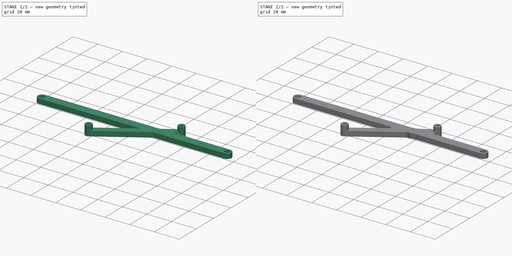
[diagram: build sequence overview — one tinted view per stage of 2, left to right]
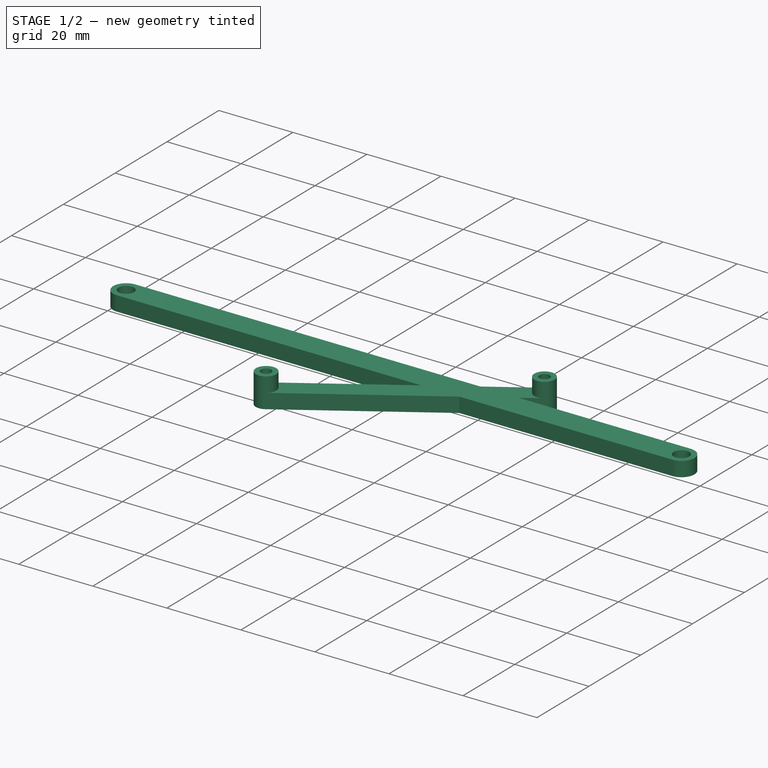
[diagram: stage 1 of 2 — iso view after this stage's code; geometry added in this stage tinted green]
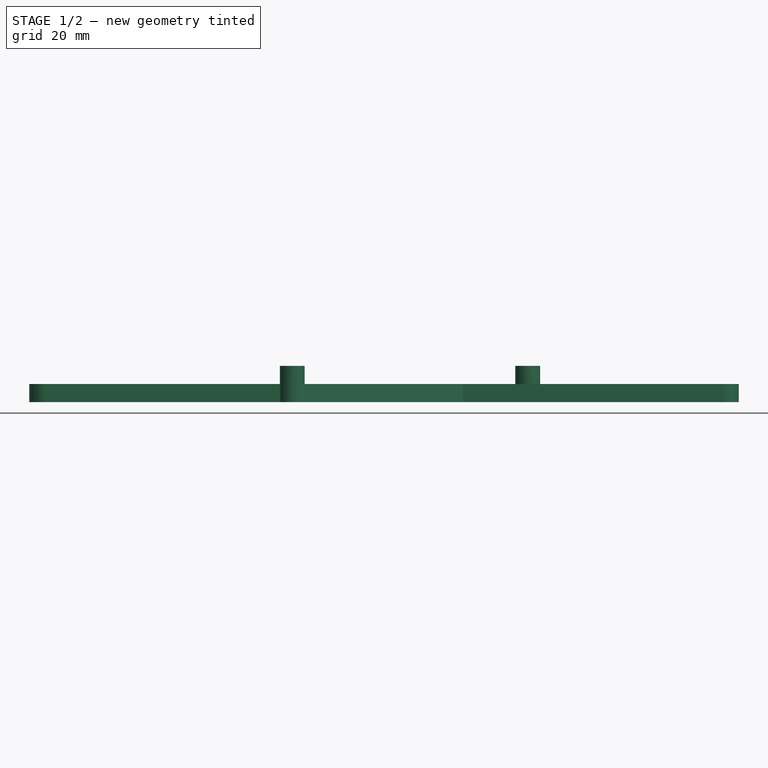
[diagram: stage 1 of 2 — front view after this stage's code; geometry added in this stage tinted green]
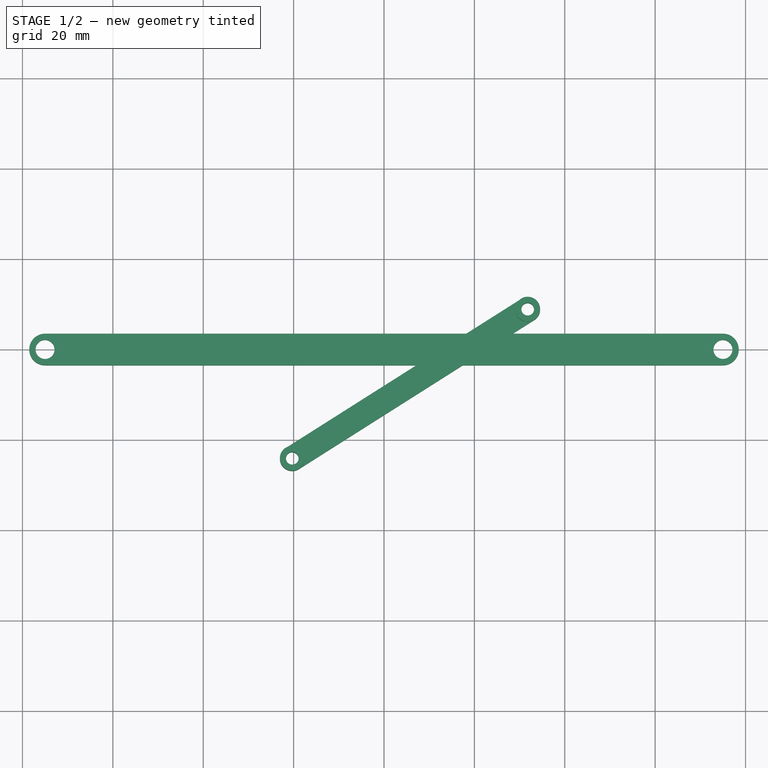
[diagram: stage 1 of 2 — top view after this stage's code; geometry added in this stage tinted green]
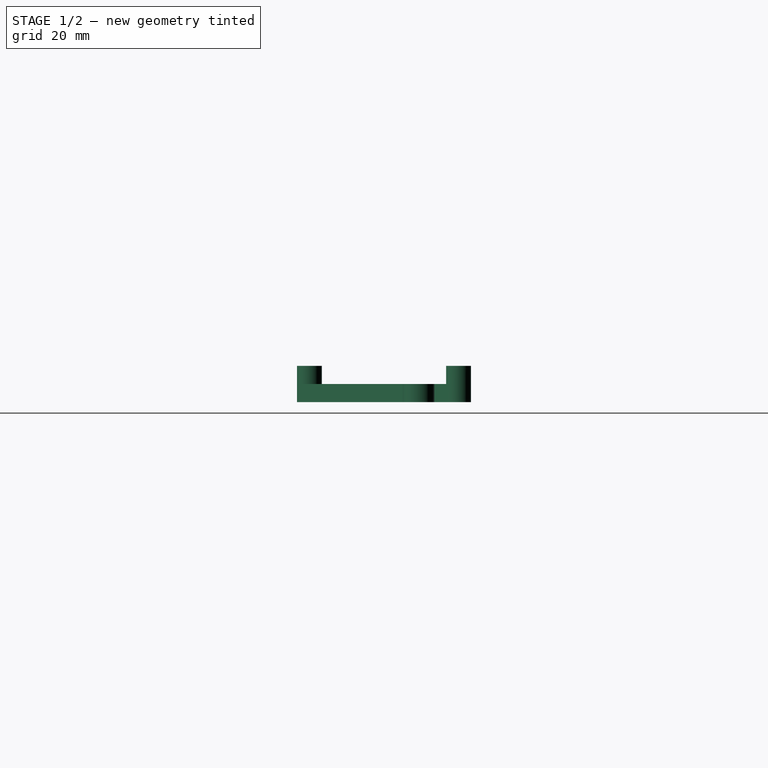
[diagram: stage 1 of 2 — right view after this stage's code; geometry added in this stage tinted green]
FCSTD DOCUMENT  (FreeCAD 0.19R24267 +99 (Git))
Label: arduino_to_psu_mount
License: All rights reserved
LicenseURL: http://en.wikipedia.org/wiki/All_rights_reserved
objects: Sketcher::SketchObject×2, PartDesign::Pad×2, PartDesign::Fillet×2, PartDesign::Body×1
note: 11 computed .brp shape members not serialized (recipe doc carries the construction recipe); baked Part::Feature solids carry a one-line shape summary decoded from their .brp

FEATURE [Sketcher::SketchObject] Sketch
  FullyConstrained = true
  MapMode = 5
  Support = -> [XY_Plane]
  sketch-geometry (24):
    g0: ArcOfCircle CenterX=75 CenterY=0 CenterZ=0 NormalX=0 NormalY=0 NormalZ=1 AngleXU=0 Radius=3.5 StartAngle=4.71239 EndAngle=7.85398
    g1: ArcOfCircle CenterX=-75 CenterY=0 CenterZ=0 NormalX=0 NormalY=0 NormalZ=1 AngleXU=0 Radius=3.5 StartAngle=1.5708 EndAngle=4.71239
    g2: LineSegment StartX=-75 StartY=-3.5 StartZ=0 EndX=7.16265 EndY=-3.5 EndZ=0
    g3: LineSegment StartX=75 StartY=3.5 StartZ=0 EndX=28.4928 EndY=3.5 EndZ=0
    g4: LineSegment StartX=-34.3 StartY=-26.65 StartZ=0 EndX=34.3 EndY=-26.65 EndZ=0
    g5: LineSegment StartX=34.3 StartY=-26.65 StartZ=0 EndX=34.3 EndY=26.65 EndZ=0
    g6: LineSegment StartX=34.3 StartY=26.65 StartZ=0 EndX=-34.3 EndY=26.65 EndZ=0
    g7: LineSegment StartX=-34.3 StartY=26.65 StartZ=0 EndX=-34.3 EndY=-26.65 EndZ=0
    g8: ArcOfCircle CenterX=31.8 CenterY=8.85 CenterZ=0 NormalX=0 NormalY=0 NormalZ=1 AngleXU=0 Radius=2.75 StartAngle=5.277 EndAngle=8.4186
    g9: LineSegment StartX=-21.7715 StartY=-21.8268 StartZ=0 EndX=30.3285 EndY=11.1732 EndZ=0
    g10: LineSegment StartX=30.3285 StartY=11.1732 StartZ=0 EndX=33.2715 EndY=6.52681 EndZ=0
    g11: LineSegment StartX=33.2715 StartY=6.52681 StartZ=0 EndX=-18.8285 EndY=-26.4732 EndZ=0
    g12: LineSegment StartX=-18.8285 StartY=-26.4732 StartZ=0 EndX=-21.7715 EndY=-21.8268 EndZ=0
    g13: LineSegment StartX=30.3285 StartY=11.1732 StartZ=0 EndX=18.2142 EndY=3.5 EndZ=0
    g14: LineSegment StartX=-18.8285 StartY=-26.4732 StartZ=0 EndX=17.4413 EndY=-3.5 EndZ=0
    g15: LineSegment StartX=7.16265 StartY=-3.5 StartZ=0 EndX=-21.7715 EndY=-21.8268 EndZ=0
    g16: LineSegment StartX=17.4413 StartY=-3.5 StartZ=0 EndX=75 EndY=-3.5 EndZ=0
    g17: LineSegment StartX=28.4928 StartY=3.5 StartZ=0 EndX=33.2715 EndY=6.52681 EndZ=0
    g18: LineSegment StartX=18.2142 StartY=3.5 StartZ=0 EndX=-75 EndY=3.5 EndZ=0
    g19: ArcOfCircle CenterX=-20.3 CenterY=-24.15 CenterZ=0 NormalX=0 NormalY=0 NormalZ=1 AngleXU=0 Radius=2.75 StartAngle=2.13541 EndAngle=5.277
    g20: Circle CenterX=-75 CenterY=0 CenterZ=0 NormalX=0 NormalY=0 NormalZ=1 AngleXU=0 Radius=2.1
    g21: Circle CenterX=75 CenterY=0 CenterZ=0 NormalX=0 NormalY=0 NormalZ=1 AngleXU=0 Radius=2.1
    g22: Circle CenterX=-20.3 CenterY=-24.15 CenterZ=0 NormalX=0 NormalY=0 NormalZ=1 AngleXU=0 Radius=1.4
    g23: Circle CenterX=31.8 CenterY=8.85 CenterZ=0 NormalX=0 NormalY=0 NormalZ=1 AngleXU=0 Radius=1.4
  constraints (67):
    c: Equal(g0,g1)
    c: Horizontal(g-1,g0)
    c: Symmetric(g2,g3,g-1)
    c: Coincident(g1,g18)
    c: Coincident(g1,g2)
    c: Coincident(g0,g16)
    c: Vertical(g1,g1)
    c: Diameter(g1) = 7
    c: DistanceX(g1,g0) = 150
    c: Vertical(g1,g1)
    c: Vertical(g0,g0)
    c: Vertical(g0,g0)
    c: Coincident(g4,g5)
    c: Coincident(g5,g6)
    c: Coincident(g6,g7)
    c: Coincident(g7,g4)
    c: Horizontal(g4)
    c: Horizontal(g6)
    c: Vertical(g5)
    c: Vertical(g7)
    c: DistanceX(g6,g6) = 68.6
    c: DistanceY(g7,g7) = 53.3
    c: Symmetric(g4,g5,g-1)
    c: DistanceX(g4,g8) = 66.1
    c: DistanceY(g4,g8) = 35.5
    c: Coincident(g9,g10)
    c: Coincident(g10,g11)
    c: Coincident(g11,g12)
    c: Coincident(g12,g9)
    c: Equal(g9,g11)
    c: Perpendicular(g9,g12)
    c: Symmetric(g9,g10,g8)
    c: Coincident(g13,g9)
    c: Coincident(g15,g9)
    c: Coincident(g14,g11)
    c: Coincident(g17,g10)
    c: Coincident(g8,g9)
    c: PointOnObject(g8,g10)
    c: PointOnObject(g13,g3)
    c: PointOnObject(g15,g2)
    c: Tangent(g13,g15)
    c: PointOnObject(g2,g9)
    c: PointOnObject(g16,g11)
    c: Tangent(g2,g16)
    c: PointOnObject(g14,g16)
    c: PointOnObject(g17,g3)
    c: Tangent(g14,g17)
    c: PointOnObject(g3,g11)
    c: PointOnObject(g18,g9)
    c: Tangent(g3,g18)
    c: Symmetric(g1,g0,g-1)
    c: Diameter(g19) = 5.5
    c: Tangent(g15,g19) = -1.5708
    c: Tangent(g14,g19) = -1.5708
    c: Coincident(g19,g9)
    c: Coincident(g19,g11)
    c: DistanceX(g4,g19) = 14
    c: DistanceY(g4,g19) = 2.5
    c: Equal(g8,g19)
    c: Coincident(g20,g1)
    c: Diameter(g20) = 4.2
    c: Coincident(g21,g0)
    c: Coincident(g22,g19)
    c: Diameter(g22) = 2.8
    c: Equal(g20,g21)
    c: Coincident(g23,g8)
    c: Equal(g22,g23)
FEATURE [PartDesign::Pad] Pad
  Direction = (1,1,1)
  Length = 4
  Length2 = 100
  Profile = -> Sketch
  Type = 0
FEATURE [Sketcher::SketchObject] Sketch001
  ExternalGeometry = -> [Pad]
  FullyConstrained = true
  MapMode = 5
  Placement = pos=(0,0,4) rot=(0,0,1;0rad)
  Support = -> [Pad]
  sketch-geometry (4):
    g0: Circle CenterX=31.8 CenterY=8.85 CenterZ=0 NormalX=0 NormalY=0 NormalZ=1 AngleXU=0 Radius=1.4
    g1: Circle CenterX=31.8 CenterY=8.85 CenterZ=0 NormalX=0 NormalY=0 NormalZ=1 AngleXU=0 Radius=2.75
    g2: Circle CenterX=-20.3 CenterY=-24.15 CenterZ=0 NormalX=0 NormalY=0 NormalZ=1 AngleXU=0 Radius=1.4
    g3: Circle CenterX=-20.3 CenterY=-24.15 CenterZ=0 NormalX=0 NormalY=0 NormalZ=1 AngleXU=0 Radius=2.75
  constraints (8):
    c: Coincident(g0,g-6)
    c: Equal(g0,g-5)
    c: Coincident(g1,g0)
    c: Equal(g1,g-6)
    c: Coincident(g2,g-4)
    c: Coincident(g3,g2)
    c: Equal(g2,g0)
    c: Equal(g3,g1)
FEATURE [PartDesign::Pad] Pad001
  BaseFeature = -> Pad
  Direction = (1,1,1)
  Length = 4
  Length2 = 100
  Profile = -> Sketch001
  Type = 0
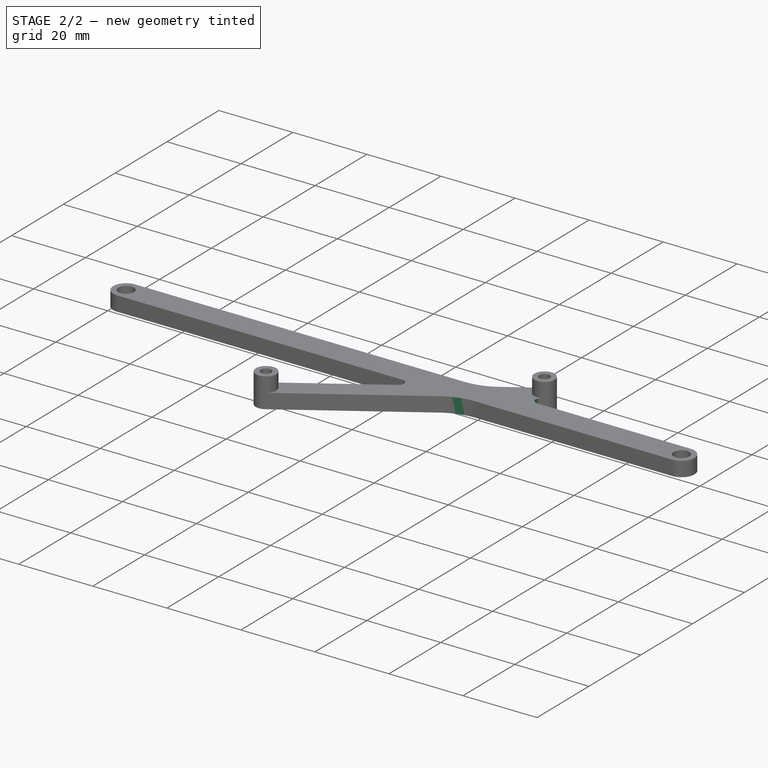
[diagram: stage 2 of 2 — iso view after this stage's code; geometry added in this stage tinted green]
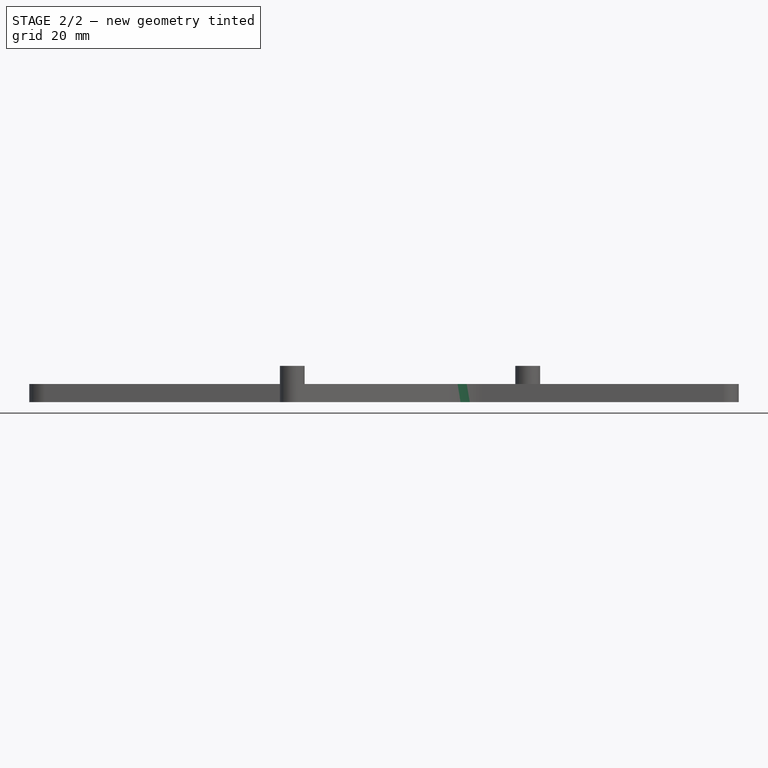
[diagram: stage 2 of 2 — front view after this stage's code; geometry added in this stage tinted green]
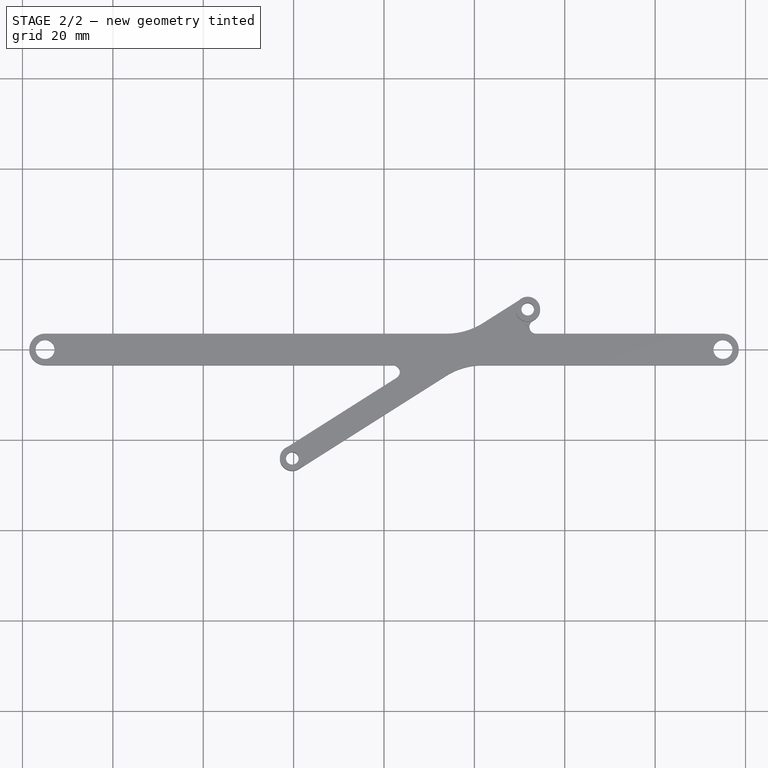
[diagram: stage 2 of 2 — top view after this stage's code; geometry added in this stage tinted green]
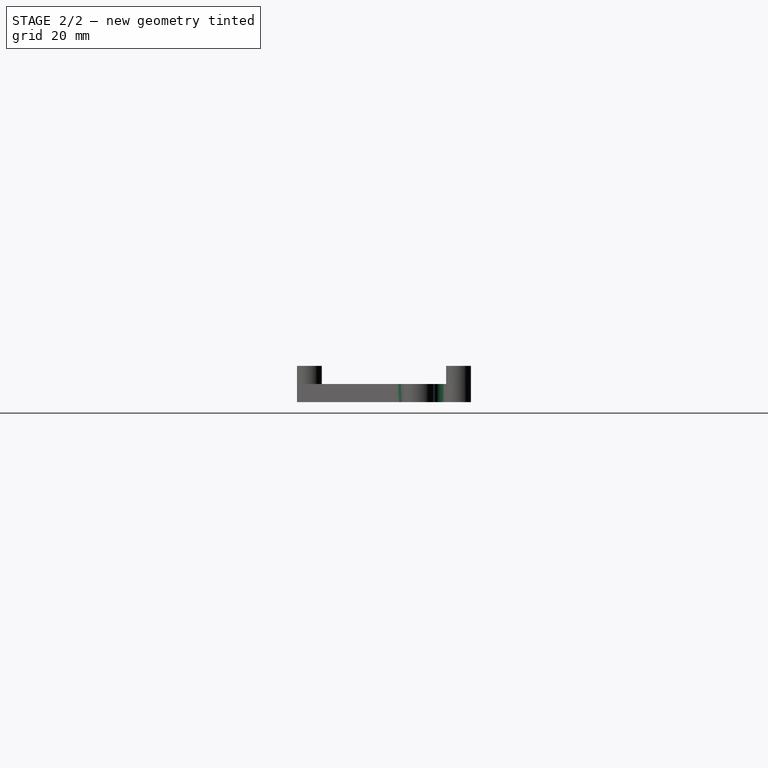
[diagram: stage 2 of 2 — right view after this stage's code; geometry added in this stage tinted green]
FEATURE [PartDesign::Fillet] Fillet
  Base = -> Pad001 [Edge44,Edge8]
  BaseFeature = -> Pad001
  Radius = 1.5
  SupportTransform = false
FEATURE [PartDesign::Fillet] Fillet001
  Base = -> Fillet [Edge41,Edge46]
  BaseFeature = -> Fillet
  Radius = 15
  SupportTransform = false
FEATURE [PartDesign::Body] Body
  Group = -> [Sketch,Pad,Sketch001,Pad001,Fillet,Fillet001]
  Origin = -> Origin
  Tip = -> Fillet001
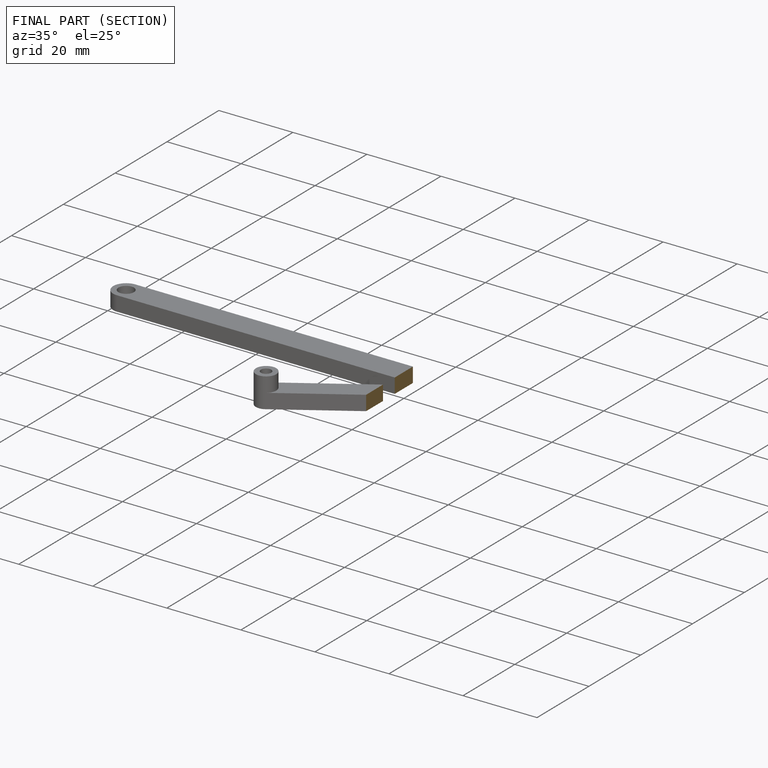
[diagram: finished part — half-section view (interior)]
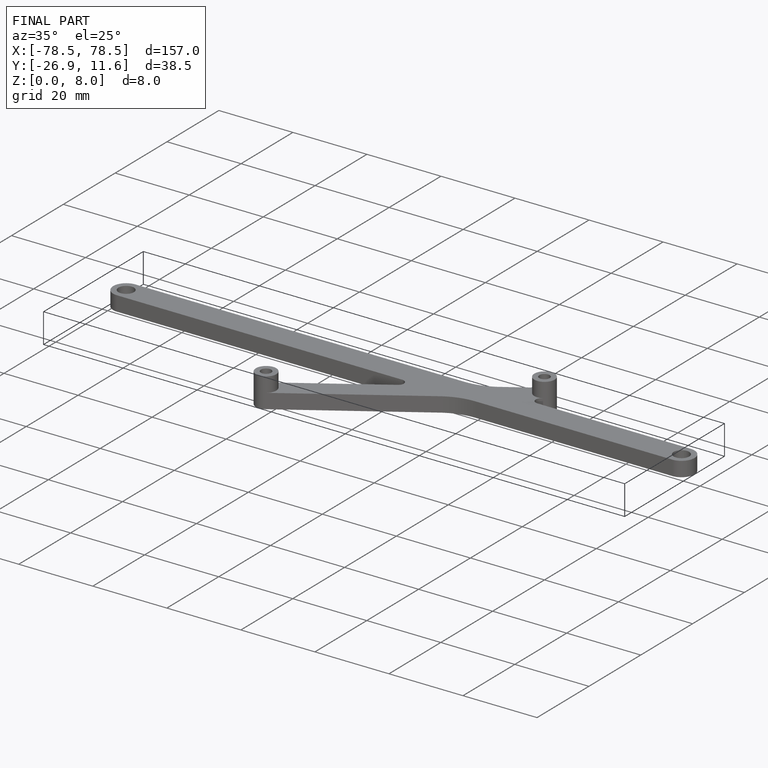
[diagram: finished part — iso view with bounding-box wireframe]
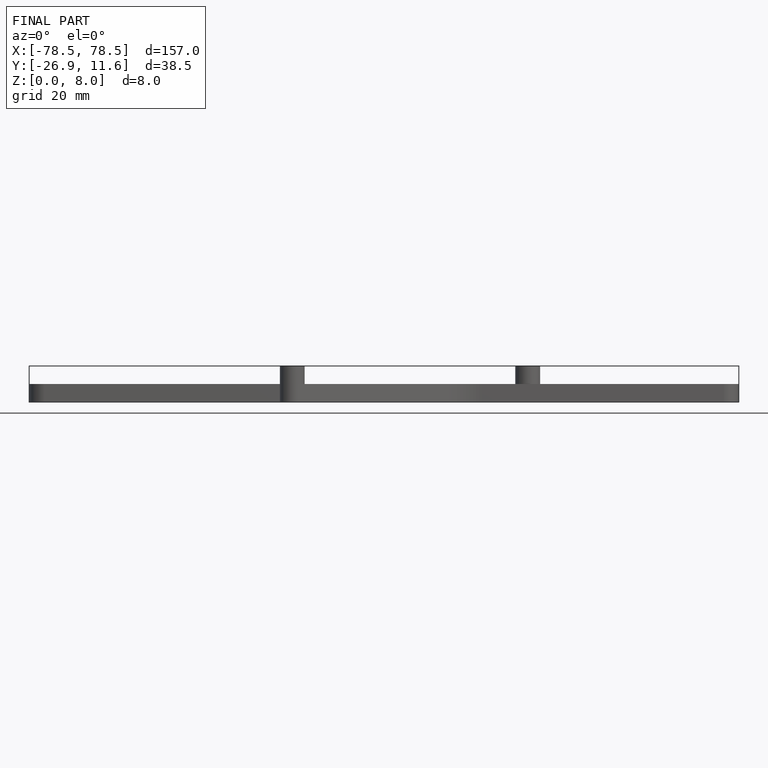
[diagram: finished part — front view with bounding-box wireframe]
